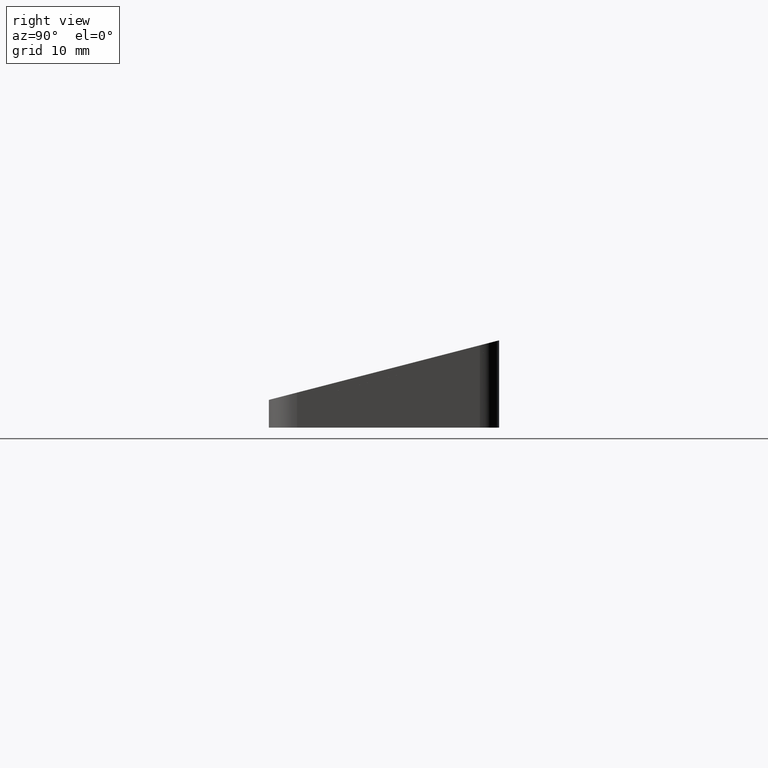
[diagram: clean part render]
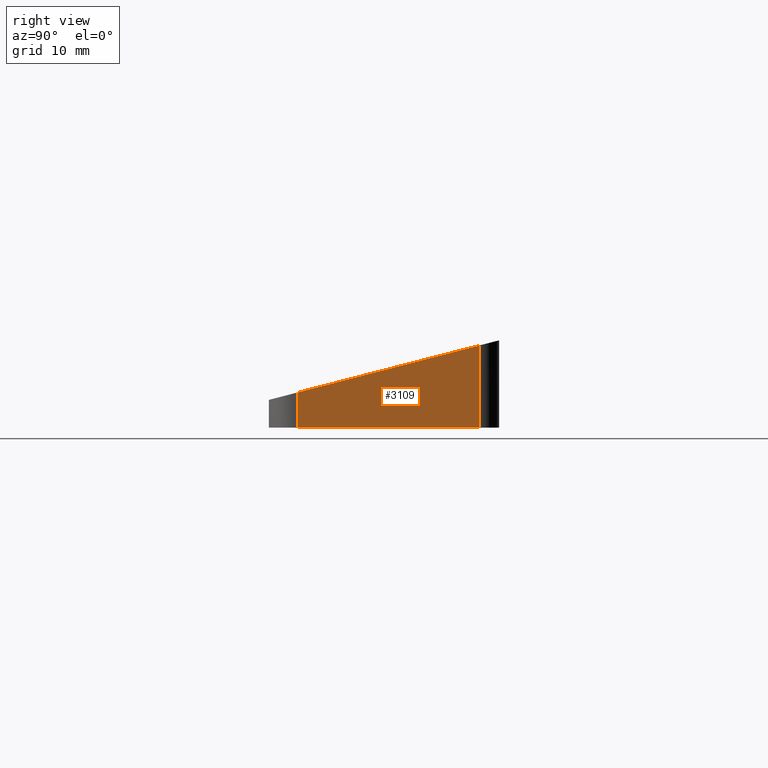
[diagram: same view with one face highlighted and labeled with its STEP entity id]
A machine part, right view. The second image highlights one B-rep face of the part: STEP entity #3109.
In plain terms, the highlighted planar face has unit normal (0.9825, 0.1863, 0).
Its self-contained STEP definition (entity closure, byte-faithful):
#2911=CARTESIAN_POINT('',(43.325017060545946,-10.940999046515007,4.420431281073704));
#2912=VERTEX_POINT('',#2911);
#2920=CARTESIAN_POINT('',(38.962948095028707,12.059000953485000,10.368707143142672));
#2921=VERTEX_POINT('',#2920);
#2922=CARTESIAN_POINT('',(38.962948095028707,12.059000953484999,10.368707143142673));
#2923=DIRECTION('',(0.180595003408357,-0.952228199789522,-0.246265913738669));
#2924=VECTOR('',#2923,24.153874045196172);
#2925=LINE('',#2922,#2924);
#2926=EDGE_CURVE('',#2921,#2912,#2925,.T.);
#3060=CARTESIAN_POINT('',(38.962948095028707,12.059000953485000,0.0));
#3061=VERTEX_POINT('',#3060);
#3062=CARTESIAN_POINT('',(38.962948095028707,12.059000953485000,0.0));
#3063=DIRECTION('',(0.0,0.0,1.0));
#3064=VECTOR('',#3063,10.368707143142672);
#3065=LINE('',#3062,#3064);
#3066=EDGE_CURVE('',#3061,#2921,#3065,.T.);
#3086=CARTESIAN_POINT('',(38.962948095028707,12.059000953485000,0.0));
#3087=DIRECTION('',(0.982486524306956,0.186333651161664,0.0));
#3088=DIRECTION('',(0.0,0.0,-1.0));
#3089=AXIS2_PLACEMENT_3D('',#3086,#3087,#3088);
#3090=PLANE('',#3089);
#3091=ORIENTED_EDGE('',*,*,#2926,.T.);
#3092=CARTESIAN_POINT('',(43.325017060545946,-10.940999046515007,0.0));
#3093=VERTEX_POINT('',#3092);
#3094=CARTESIAN_POINT('',(43.325017060545946,-10.940999046515007,0.0));
#3095=DIRECTION('',(0.0,0.0,1.0));
#3096=VECTOR('',#3095,4.420431281073704);
#3097=LINE('',#3094,#3096);
#3098=EDGE_CURVE('',#3093,#2912,#3097,.T.);
#3099=ORIENTED_EDGE('',*,*,#3098,.F.);
#3100=CARTESIAN_POINT('',(43.325017060545946,-10.940999046515007,0.0));
#3101=DIRECTION('',(-0.186333651161664,0.982486524306956,0.0));
#3102=VECTOR('',#3101,23.409990296023810);
#3103=LINE('',#3100,#3102);
#3104=EDGE_CURVE('',#3093,#3061,#3103,.T.);
#3105=ORIENTED_EDGE('',*,*,#3104,.T.);
#3106=ORIENTED_EDGE('',*,*,#3066,.T.);
#3107=EDGE_LOOP('',(#3091,#3099,#3105,#3106));
#3108=FACE_OUTER_BOUND('',#3107,.T.);
#3109=ADVANCED_FACE('',(#3108),#3090,.T.);